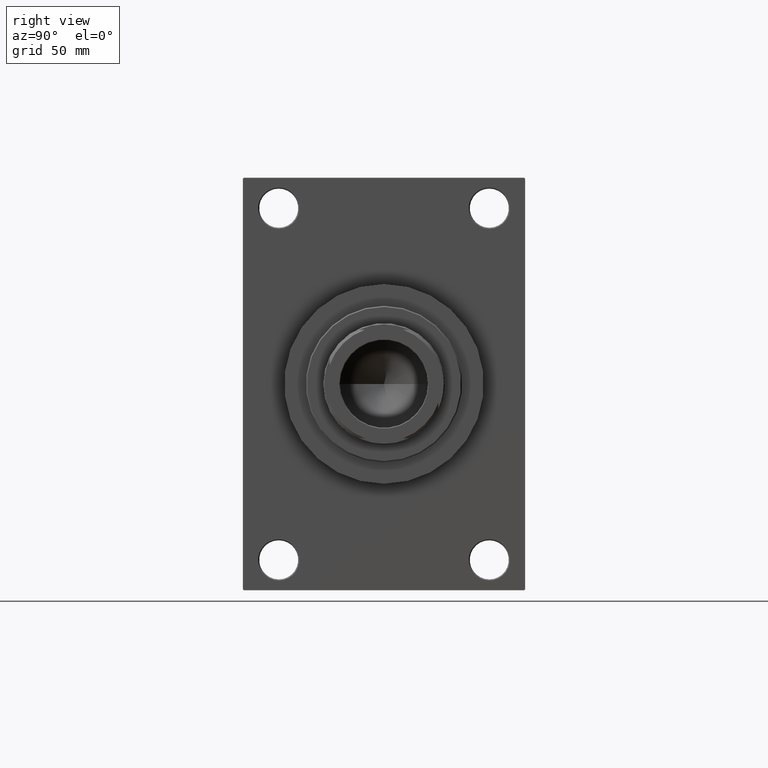
[diagram: clean part render]
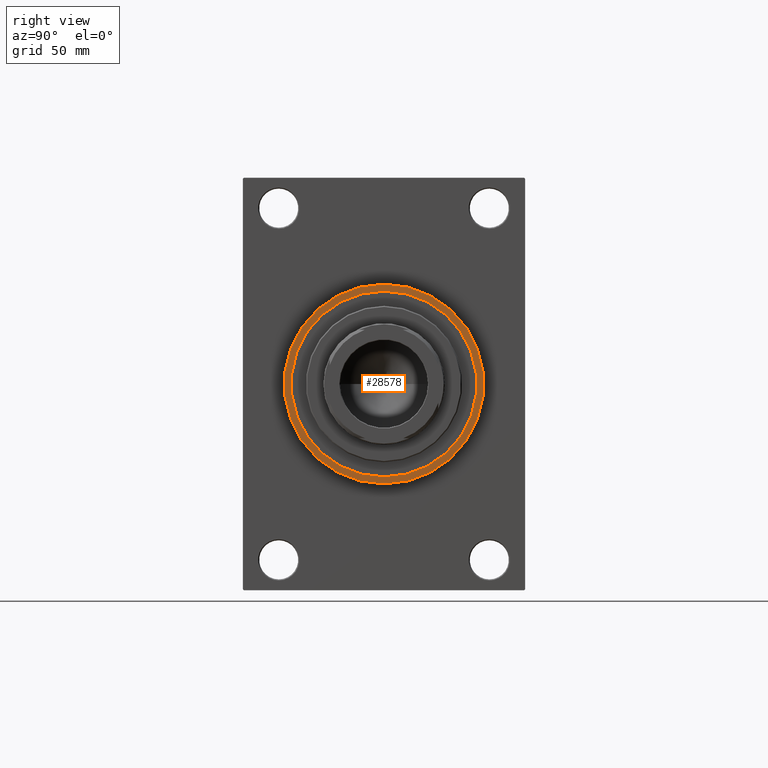
[diagram: same view with one face highlighted and labeled with its STEP entity id]
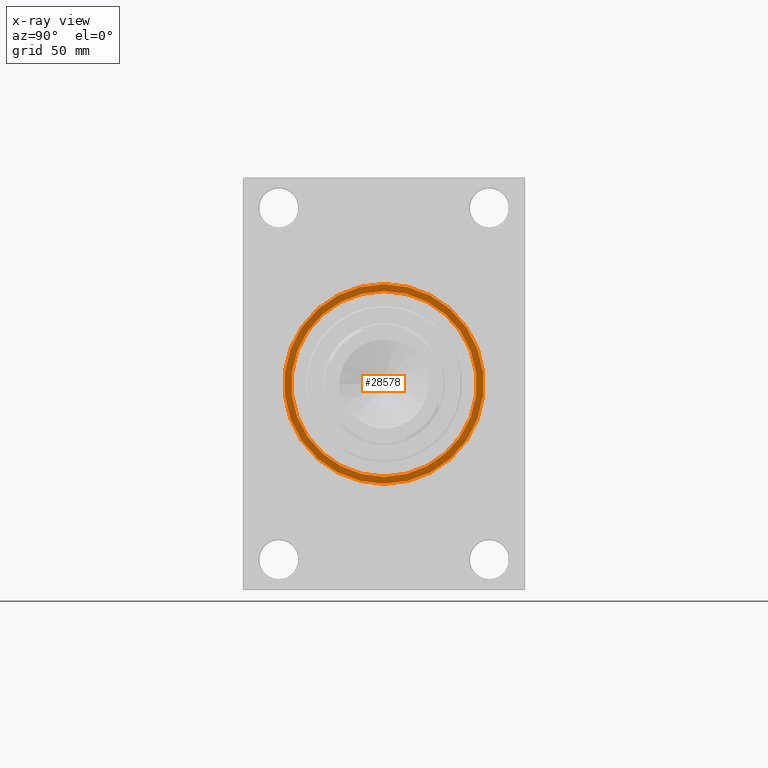
[diagram: x-ray of the same camera — body ghosted, the highlighted face saturated]
A machine part, right view. The second image highlights one B-rep face of the part: STEP entity #28578.
The next image is the same camera in x-ray: the body ghosted, the highlighted face saturated — about 0% of this face is hidden behind the body in this view.
In plain terms, the highlighted planar face has unit normal (1, 0, 0).
Its self-contained STEP definition (entity closure, byte-faithful):
#1330 = CARTESIAN_POINT ( 'NONE',  ( 190.9999999999999716, 0.000000000000000000, 0.000000000000000000 ) ) ;
#1417 = CARTESIAN_POINT ( 'NONE',  ( 190.9999999999999716, 0.000000000000000000, -42.75000000000000000 ) ) ;
#1636 = ORIENTED_EDGE ( 'NONE', *, *, #30742, .T. ) ;
#3322 = DIRECTION ( 'NONE',  ( 0.000000000000000000, 0.000000000000000000, -1.000000000000000000 ) ) ;
#4026 = VERTEX_POINT ( 'NONE', #5157 ) ;
#4390 = EDGE_CURVE ( 'NONE', #4026, #18490, #28046, .T. ) ;
#5102 = EDGE_LOOP ( 'NONE', ( #1636, #27779 ) ) ;
#5157 = CARTESIAN_POINT ( 'NONE',  ( 190.9999999999999716, 5.633375276077824704E-15, -46.00000000000000000 ) ) ;
#6885 = EDGE_CURVE ( 'NONE', #15438, #14610, #36582, .T. ) ;
#8085 = DIRECTION ( 'NONE',  ( 0.000000000000000000, 0.000000000000000000, -1.000000000000000000 ) ) ;
#8810 = ORIENTED_EDGE ( 'NONE', *, *, #6885, .F. ) ;
#9211 = CARTESIAN_POINT ( 'NONE',  ( 190.9999999999999716, 0.000000000000000000, 0.000000000000000000 ) ) ;
#9898 = CIRCLE ( 'NONE', #46856, 42.75000000000000000 ) ;
#10118 = DIRECTION ( 'NONE',  ( 0.000000000000000000, 0.000000000000000000, -1.000000000000000000 ) ) ;
#10350 = DIRECTION ( 'NONE',  ( 1.000000000000000000, 0.000000000000000000, 0.000000000000000000 ) ) ;
#11194 = CARTESIAN_POINT ( 'NONE',  ( 190.9999999999999716, 0.000000000000000000, 0.000000000000000000 ) ) ;
#11595 = EDGE_LOOP ( 'NONE', ( #8810, #46005 ) ) ;
#12452 = CARTESIAN_POINT ( 'NONE',  ( 190.9999999999999716, 0.000000000000000000, 46.00000000000000000 ) ) ;
#13376 = CARTESIAN_POINT ( 'NONE',  ( 190.9999999999999716, 5.235365066354935472E-15, 42.75000000000000000 ) ) ;
#14582 = DIRECTION ( 'NONE',  ( 1.000000000000000000, 0.000000000000000000, 0.000000000000000000 ) ) ;
#14610 = VERTEX_POINT ( 'NONE', #13376 ) ;
#15094 = DIRECTION ( 'NONE',  ( 1.000000000000000000, 0.000000000000000000, 0.000000000000000000 ) ) ;
#15438 = VERTEX_POINT ( 'NONE', #1417 ) ;
#15747 = AXIS2_PLACEMENT_3D ( 'NONE', #1330, #41406, #8085 ) ;
#17587 = CARTESIAN_POINT ( 'NONE',  ( 190.9999999999999716, 0.000000000000000000, 0.000000000000000000 ) ) ;
#18490 = VERTEX_POINT ( 'NONE', #12452 ) ;
#18780 = AXIS2_PLACEMENT_3D ( 'NONE', #36850, #15094, #3322 ) ;
#19333 = PLANE ( 'NONE',  #39567 ) ;
#19590 = AXIS2_PLACEMENT_3D ( 'NONE', #11194, #14582, #41132 ) ;
#27779 = ORIENTED_EDGE ( 'NONE', *, *, #4390, .T. ) ;
#28046 = CIRCLE ( 'NONE', #18780, 46.00000000000000000 ) ;
#28578 = ADVANCED_FACE ( 'NONE', ( #30458, #45189 ), #19333, .T. ) ;
#30458 = FACE_BOUND ( 'NONE', #11595, .T. ) ;
#30742 = EDGE_CURVE ( 'NONE', #18490, #4026, #40425, .T. ) ;
#34555 = DIRECTION ( 'NONE',  ( 1.000000000000000000, 0.000000000000000000, 0.000000000000000000 ) ) ;
#36582 = CIRCLE ( 'NONE', #15747, 42.75000000000000000 ) ;
#36850 = CARTESIAN_POINT ( 'NONE',  ( 190.9999999999999716, 0.000000000000000000, 0.000000000000000000 ) ) ;
#38429 = DIRECTION ( 'NONE',  ( 0.000000000000000000, 0.000000000000000000, -1.000000000000000000 ) ) ;
#39567 = AXIS2_PLACEMENT_3D ( 'NONE', #9211, #34555, #38429 ) ;
#40425 = CIRCLE ( 'NONE', #19590, 46.00000000000000000 ) ;
#41132 = DIRECTION ( 'NONE',  ( 0.000000000000000000, 0.000000000000000000, -1.000000000000000000 ) ) ;
#41406 = DIRECTION ( 'NONE',  ( 1.000000000000000000, 0.000000000000000000, 0.000000000000000000 ) ) ;
#44117 = EDGE_CURVE ( 'NONE', #14610, #15438, #9898, .T. ) ;
#45189 = FACE_OUTER_BOUND ( 'NONE', #5102, .T. ) ;
#46005 = ORIENTED_EDGE ( 'NONE', *, *, #44117, .F. ) ;
#46856 = AXIS2_PLACEMENT_3D ( 'NONE', #17587, #10350, #10118 ) ;